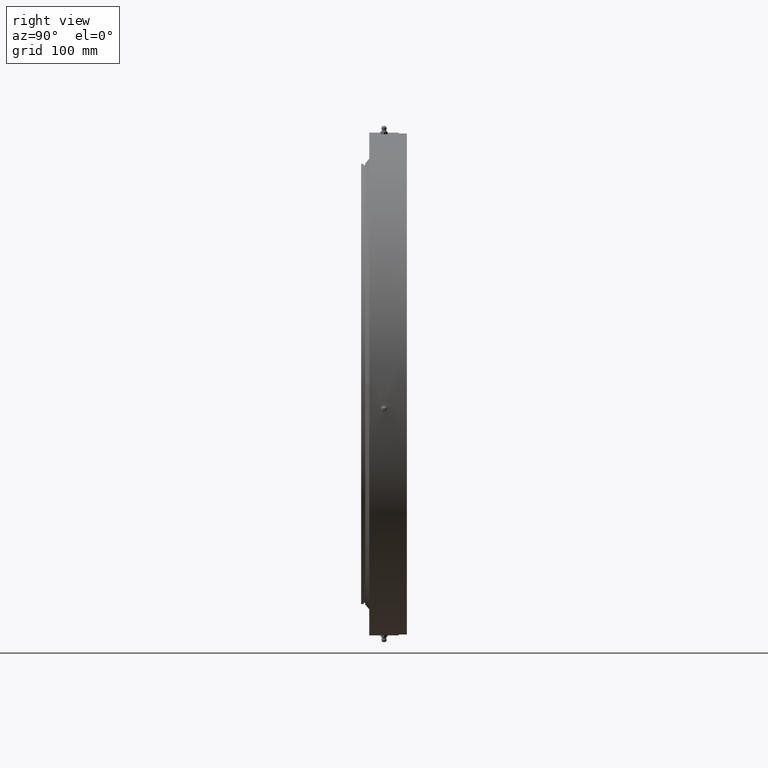
[diagram: clean part render]
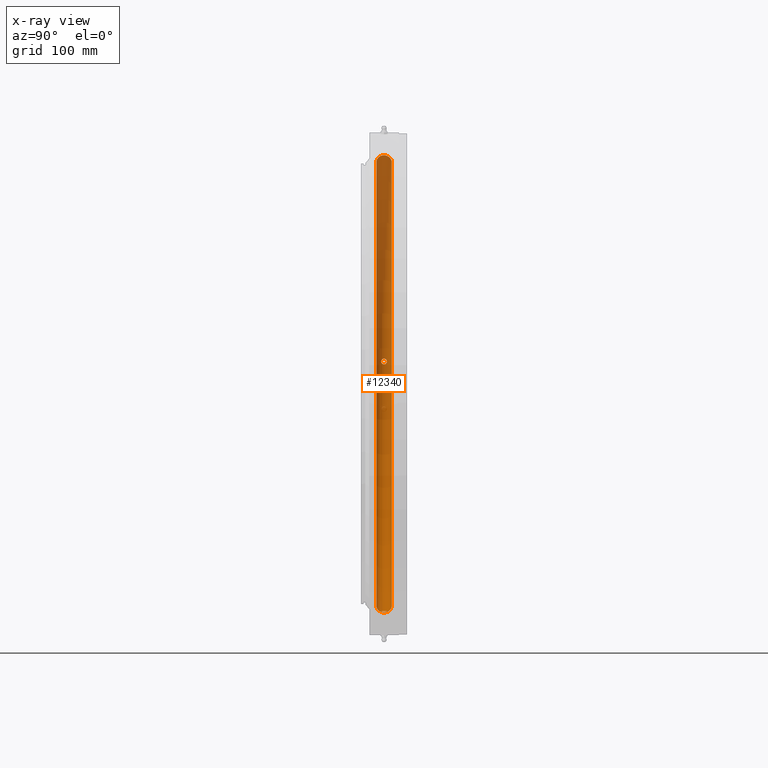
[diagram: x-ray — body ghosted, one internal face saturated and labeled with its STEP entity id]
A machine part, right view, then the same camera in x-ray: the body is ghosted and one INTERNAL B-rep face — a face not visible from any outside direction — is saturated and labeled: STEP entity #12340.
In plain terms, the highlighted toroidal blend (fillet) surface has major radius 270.5 mm and minor (blend) radius 9.75 mm.
Its self-contained STEP definition (entity closure, byte-faithful):
#193 = CARTESIAN_POINT ( 'NONE',  ( -4.854290794506961600E-014, -9.486832980505148800, -272.7499999999999400 ) ) ;
#208 = CARTESIAN_POINT ( 'NONE',  ( -30.47343172828992800, -1.756724164248161500, -278.4297639028860700 ) ) ;
#262 = CARTESIAN_POINT ( 'NONE',  ( -278.9249916018696900, -2.138429774617583800, 24.67820583414993500 ) ) ;
#304 = CARTESIAN_POINT ( 'NONE',  ( -30.21321827538027800, -2.136439966059588500, -278.3802987086440300 ) ) ;
#375 = CARTESIAN_POINT ( 'NONE',  ( -23.98401473821215300, -4.257732180322140700E-009, -279.2218285468334200 ) ) ;
#650 = CARTESIAN_POINT ( 'NONE',  ( -279.2218285468333100, -4.280068975054959700E-009, 23.98401473821312300 ) ) ;
#940 = VERTEX_POINT ( 'NONE', #16788 ) ;
#967 = CARTESIAN_POINT ( 'NONE',  ( 1.402719954538093300E-014, 9.486832980505148800, 272.7499999999999400 ) ) ;
#1100 = CARTESIAN_POINT ( 'NONE',  ( -278.6996987440509800, -2.781271624159725500, 25.30228085811661400 ) ) ;
#1233 = VERTEX_POINT ( 'NONE', #967 ) ;
#1430 = CARTESIAN_POINT ( 'NONE',  ( -30.95030782491753400, -4.281385883225100000E-009, -278.5357085645266000 ) ) ;
#1626 = CARTESIAN_POINT ( 'NONE',  ( -25.13032593813337500, -2.635966824546191100, -278.7579627105216100 ) ) ;
#1705 = CARTESIAN_POINT ( 'NONE',  ( -24.15766224252708800, 1.133029113677961100, -279.1429338301451300 ) ) ;
#1958 = CARTESIAN_POINT ( 'NONE',  ( -30.83342232907314800, 0.9138095768234136800, -278.5081299862586100 ) ) ;
#2109 = CARTESIAN_POINT ( 'NONE',  ( -278.5080952078080800, -0.9143810093683116800, 30.83327238850264300 ) ) ;
#2238 = FACE_BOUND ( 'NONE', #5672, .T. ) ;
#2389 = CARTESIAN_POINT ( 'NONE',  ( -30.95030782491753400, -4.281385883225100000E-009, -278.5357085645266000 ) ) ;
#2450 = CARTESIAN_POINT ( 'NONE',  ( -278.3542384561964100, -2.313041298998646900, 30.06497979109539300 ) ) ;
#2491 = CARTESIAN_POINT ( 'NONE',  ( -30.76397169548518900, -1.134678781540412900, -278.4920659362870800 ) ) ;
#2691 = EDGE_CURVE ( 'NONE', #14348, #11439, #7071, .T. ) ;
#2799 = CARTESIAN_POINT ( 'NONE',  ( -28.96802460990087300, -3.142631229246665400, -278.2262320770839800 ) ) ;
#2844 = AXIS2_PLACEMENT_3D ( 'NONE', #20410, #19904, #25847 ) ;
#3040 = ORIENTED_EDGE ( 'NONE', *, *, #22662, .T. ) ;
#3173 = CARTESIAN_POINT ( 'NONE',  ( -278.3850020937516700, -3.386135099661436300, 26.49882027671597500 ) ) ;
#3628 = CARTESIAN_POINT ( 'NONE',  ( -25.86709134568174000, -3.142395178954935800, -278.5317323469201900 ) ) ;
#4048 = CARTESIAN_POINT ( 'NONE',  ( -23.98401473820075600, -0.2300511060104313600, -279.2218285467335500 ) ) ;
#4092 = CARTESIAN_POINT ( 'NONE',  ( -25.66872807210609900, 3.033074913521724500, -278.5871875845675700 ) ) ;
#4126 = CARTESIAN_POINT ( 'NONE',  ( -24.43319716235530200, -1.760509877079625000, -279.0239940688954900 ) ) ;
#4150 = CARTESIAN_POINT ( 'NONE',  ( -25.30377262526328200, -2.782373637838455600, -278.6992252177875600 ) ) ;
#4239 = CARTESIAN_POINT ( 'NONE',  ( -24.15823516713578600, -1.134604883000507800, -279.1426816790382800 ) ) ;
#4364 = CARTESIAN_POINT ( 'NONE',  ( -4.814246232499115000E-014, 9.451857946318540900E-015, -270.5000000000000000 ) ) ;
#4422 = CARTESIAN_POINT ( 'NONE',  ( -29.55803021655181300, -2.779506465275010600, -278.2810691666264800 ) ) ;
#4464 = DIRECTION ( 'NONE',  ( 1.779758311459937600E-016, 0.0000000000000000000, 1.000000000000000000 ) ) ;
#4496 = DIRECTION ( 'NONE',  ( -1.000000000000000000, -1.173697223544192200E-016, 1.779758311459931500E-016 ) ) ;
#4509 = CARTESIAN_POINT ( 'NONE',  ( -278.2313160871086100, -3.500030615464213100, 27.63363335112000000 ) ) ;
#4515 = EDGE_LOOP ( 'NONE', ( #13888, #7153, #3040, #20106 ) ) ;
#4572 = CARTESIAN_POINT ( 'NONE',  ( -26.28459403957380800, -3.319584510296676800, -278.4301327297653200 ) ) ;
#4600 = CARTESIAN_POINT ( 'NONE',  ( -279.2218285468333100, -4.280068975054959700E-009, 23.98401473821312300 ) ) ;
#4658 = CARTESIAN_POINT ( 'NONE',  ( -24.67888826469068400, -2.139455578496731300, -278.9247173707600500 ) ) ;
#4934 = CARTESIAN_POINT ( 'NONE',  ( -30.06370089088044800, -2.314213452420447000, -278.3540544551126500 ) ) ;
#4960 = CARTESIAN_POINT ( 'NONE',  ( -29.73712107816338300, -2.634507935561748200, -278.3046191000360600 ) ) ;
#5220 = CARTESIAN_POINT ( 'NONE',  ( -278.3075091432600100, -3.477219868026501200, 26.94758974910257600 ) ) ;
#5250 = CARTESIAN_POINT ( 'NONE',  ( -30.58360454258735600, -1.556455931016093500, -278.4528074319814000 ) ) ;
#5305 = CARTESIAN_POINT ( 'NONE',  ( -30.95030782490758600, -0.2315976925125431100, -278.5357085644253600 ) ) ;
#5417 = CARTESIAN_POINT ( 'NONE',  ( -278.9253132731368500, 2.137540216020092500, 24.67734925807681300 ) ) ;
#5468 = CARTESIAN_POINT ( 'NONE',  ( -30.06099037216861100, 2.317260115374573100, -278.3535987454600300 ) ) ;
#5569 = EDGE_CURVE ( 'NONE', #13039, #21735, #14714, .T. ) ;
#5672 = EDGE_LOOP ( 'NONE', ( #7127, #20317 ) ) ;
#5771 = CARTESIAN_POINT ( 'NONE',  ( -24.09344138367343300, 0.9145873256553425100, -279.1719008168937500 ) ) ;
#5912 = CIRCLE ( 'NONE', #14736, 272.7499999999999400 ) ;
#6140 = CARTESIAN_POINT ( 'NONE',  ( -29.55555642089489200, 2.781309824331817300, -278.2807833271904800 ) ) ;
#6430 = CARTESIAN_POINT ( 'NONE',  ( -23.98401473822353900, 0.2299571179798947400, -279.2218285469333000 ) ) ;
#6647 = CIRCLE ( 'NONE', #7875, 9.750000000000000000 ) ;
#6689 = CARTESIAN_POINT ( 'NONE',  ( -279.0250914682695200, 1.755955647628078000, 24.43054667573691300 ) ) ;
#7017 = FACE_OUTER_BOUND ( 'NONE', #4515, .T. ) ;
#7071 = B_SPLINE_CURVE_WITH_KNOTS ( 'NONE', 3,
 ( #21748, #22955, #12822, #10984, #25725, #19838, #13283, #13334, #16161, #16002, #9927, #10564, #20526, #20721, #15921, #11950, #23185, #11869, #21326, #21302, #14678, #11882, #18723, #15341, #7399, #25456, #5417, #6689, #23246, #19755, #17088, #10015, #13907, #9468 ),
 .UNSPECIFIED., .F., .F.,
 ( 4, 2, 2, 2, 2, 2, 2, 2, 2, 2, 2, 2, 2, 2, 2, 2, 4 ),
 ( 0.01433285584180587900, 0.01502221361534239600, 0.01571157138887891600, 0.01640092916241543300, 0.01709028693595195100, 0.01777964470948846900, 0.01846900248302498600, 0.01915836025656150700, 0.01984771803009802500, 0.02053707580363454300, 0.02122643357717106000, 0.02191579135070757800, 0.02260514912424409900, 0.02329450689778061300, 0.02398386467131713400, 0.02467322244485365200, 0.02536258021839017000 ),
 .UNSPECIFIED. ) ;
#7127 = ORIENTED_EDGE ( 'NONE', *, *, #8302, .T. ) ;
#7153 = ORIENTED_EDGE ( 'NONE', *, *, #18522, .F. ) ;
#7399 = CARTESIAN_POINT ( 'NONE',  ( -278.7588914044392300, 2.633466420770469900, 25.12767845659231700 ) ) ;
#7508 = CARTESIAN_POINT ( 'NONE',  ( -26.28357912707871000, 3.319177478200374700, -278.4303729535791900 ) ) ;
#7573 = CARTESIAN_POINT ( 'NONE',  ( 1.625413345127020400E-014, -9.486832980505164800, 272.7499999999999400 ) ) ;
#7673 = CARTESIAN_POINT ( 'NONE',  ( -29.17119565696736300, -3.034976839485889600, -278.2416420624298900 ) ) ;
#7875 = AXIS2_PLACEMENT_3D ( 'NONE', #8080, #8109, #8114 ) ;
#8006 = CARTESIAN_POINT ( 'NONE',  ( -27.86277612846189900, 3.477590386137031900, -278.2172335325140000 ) ) ;
#8046 = B_SPLINE_CURVE_WITH_KNOTS ( 'NONE', 3,
 ( #20698, #4048, #20234, #20471, #4239, #13154, #4126, #4658, #15650, #1626, #4150, #17476, #3628, #4572, #9476, #21482, #21171, #20386, #20993, #20907, #23109, #2799, #7673, #4422, #4960, #4934, #304, #208, #5250, #2491, #19566, #20728, #5305, #2389 ),
 .UNSPECIFIED., .F., .F.,
 ( 4, 2, 2, 2, 2, 2, 2, 2, 2, 2, 2, 2, 2, 2, 2, 2, 4 ),
 ( 0.002769913162153709900, 0.003459460999611723000, 0.004149008837069735600, 0.004838556674527748700, 0.005528104511985761800, 0.006217652349443774900, 0.006907200186901787900, 0.007596748024359801000, 0.008286295861817814100, 0.008975843699275827200, 0.009665391536733840300, 0.01035493937419185300, 0.01104448721164986600, 0.01173403504910788000, 0.01242358288656589300, 0.01311313072402390600, 0.01380267856148191900 ),
 .UNSPECIFIED. ) ;
#8080 = CARTESIAN_POINT ( 'NONE',  ( 1.501576640805524200E-014, -9.451857946318544000E-015, 270.5000000000000000 ) ) ;
#8109 = DIRECTION ( 'NONE',  ( 1.000000000000000000, 1.173697223544192200E-016, -5.551115123125782100E-017 ) ) ;
#8114 = DIRECTION ( 'NONE',  ( -1.173697223544191900E-016, 1.000000000000000000, 0.0000000000000000000 ) ) ;
#8217 = CARTESIAN_POINT ( 'NONE',  ( -30.76385361760241500, 1.135383462246547100, -278.4920328475570300 ) ) ;
#8302 = EDGE_CURVE ( 'NONE', #21735, #13039, #8046, .T. ) ;
#8304 = AXIS2_PLACEMENT_3D ( 'NONE', #13904, #12771, #9238 ) ;
#8619 = CARTESIAN_POINT ( 'NONE',  ( -278.2055888023720600, -3.386295967064586200, 28.31983953094026100 ) ) ;
#8802 = CARTESIAN_POINT ( 'NONE',  ( -278.2418461655935300, -3.033653544982242200, 29.17320359956162400 ) ) ;
#9238 = DIRECTION ( 'NONE',  ( 5.551115123125782700E-017, -3.180061367510187900E-017, 1.000000000000000000 ) ) ;
#9384 = CARTESIAN_POINT ( 'NONE',  ( -28.96437862334548900, 3.144347589236178700, -278.2260174980917800 ) ) ;
#9468 = CARTESIAN_POINT ( 'NONE',  ( -279.2218285468333100, -4.280068975054959700E-009, 23.98401473821312300 ) ) ;
#9476 = CARTESIAN_POINT ( 'NONE',  ( -26.50187440717693500, -3.386785377388254100, -278.3844640890052300 ) ) ;
#9756 = CARTESIAN_POINT ( 'NONE',  ( -278.5307366364489800, -3.144194143302987000, 25.87103738361364700 ) ) ;
#9898 = CARTESIAN_POINT ( 'NONE',  ( -24.67732439378276200, 2.137212346283159800, -278.9253397069732600 ) ) ;
#9927 = CARTESIAN_POINT ( 'NONE',  ( -278.2805604522998800, 2.782733311475066100, 29.55350921898988000 ) ) ;
#10015 = CARTESIAN_POINT ( 'NONE',  ( -279.2117625315914300, 0.4590211284230170700, 24.00571379444599200 ) ) ;
#10174 = CARTESIAN_POINT ( 'NONE',  ( -27.17687185648829400, 3.499998538786661200, -278.2763151610379900 ) ) ;
#10388 = AXIS2_PLACEMENT_3D ( 'NONE', #4364, #4496, #4464 ) ;
#10453 = CIRCLE ( 'NONE', #10388, 9.749999999999980500 ) ;
#10564 = CARTESIAN_POINT ( 'NONE',  ( -278.2416099963026000, 3.035254999242762400, 29.17040423113116500 ) ) ;
#10615 = EDGE_LOOP ( 'NONE', ( #15639, #19002 ) ) ;
#10781 = DIRECTION ( 'NONE',  ( 5.551115123125782700E-017, -3.180061367510187900E-017, 1.000000000000000000 ) ) ;
#10786 = CARTESIAN_POINT ( 'NONE',  ( -278.4527496375205300, -1.557156581814095300, 30.58334673513966400 ) ) ;
#10901 = DIRECTION ( 'NONE',  ( 1.173697223544192200E-016, -1.000000000000000000, -3.494217355385783800E-017 ) ) ;
#10984 = CARTESIAN_POINT ( 'NONE',  ( -278.5082105765965800, 0.9130533991701739200, 30.83377543654189200 ) ) ;
#11065 = CARTESIAN_POINT ( 'NONE',  ( -30.95030782491753400, -4.281385883225100000E-009, -278.5357085645266000 ) ) ;
#11202 = CARTESIAN_POINT ( 'NONE',  ( 1.113466952944637800E-015, -9.486832980505157700, -3.314905644812736000E-016 ) ) ;
#11439 = VERTEX_POINT ( 'NONE', #650 ) ;
#11716 = CARTESIAN_POINT ( 'NONE',  ( -278.4922226485786000, -1.132915198426729800, 30.76468394630448300 ) ) ;
#11869 = CARTESIAN_POINT ( 'NONE',  ( -278.2767363979997400, 3.499930358246662100, 27.17285379212063000 ) ) ;
#11882 = CARTESIAN_POINT ( 'NONE',  ( -278.5319890327670600, 3.141853168955058200, 25.86625619645334600 ) ) ;
#11950 = CARTESIAN_POINT ( 'NONE',  ( -278.2171436681345000, 3.476941506132190400, 27.86609925564792400 ) ) ;
#12134 = CARTESIAN_POINT ( 'NONE',  ( -28.31916460012396200, 3.386549345216288900, -278.2055645837510800 ) ) ;
#12340 = ADVANCED_FACE ( 'NONE', ( #7017, #2238, #22547 ), #24431, .F. ) ;
#12580 = CARTESIAN_POINT ( 'NONE',  ( -24.32736099899434000, 1.556281382685053200, -279.0690369773716400 ) ) ;
#12717 = CARTESIAN_POINT ( 'NONE',  ( -278.2080851516481100, -3.319329713413063000, 28.53992120444867800 ) ) ;
#12771 = DIRECTION ( 'NONE',  ( 1.173697223544192200E-016, -1.000000000000000000, -3.494217355385783800E-017 ) ) ;
#12822 = CARTESIAN_POINT ( 'NONE',  ( -278.5300791449639100, 0.4591471757546548000, 30.92710748217815100 ) ) ;
#13039 = VERTEX_POINT ( 'NONE', #11065 ) ;
#13154 = CARTESIAN_POINT ( 'NONE',  ( -24.32742661487463600, -1.556297684463082300, -279.0690110778689900 ) ) ;
#13283 = CARTESIAN_POINT ( 'NONE',  ( -278.4293504415752000, 1.760184588638393300, 30.47139721196484900 ) ) ;
#13313 = CARTESIAN_POINT ( 'NONE',  ( -278.5864405469868100, -3.034661041457621600, 25.67126350052180000 ) ) ;
#13334 = CARTESIAN_POINT ( 'NONE',  ( -278.3797902247012500, 2.140051408213414800, 30.21040021023186700 ) ) ;
#13823 = CARTESIAN_POINT ( 'NONE',  ( -29.16996506694971500, 3.035618248281462900, -278.2415506726519000 ) ) ;
#13888 = ORIENTED_EDGE ( 'NONE', *, *, #23353, .F. ) ;
#13904 = CARTESIAN_POINT ( 'NONE',  ( -1.113466952944637800E-015, 9.486832980505157700, 3.314905644812736000E-016 ) ) ;
#13907 = CARTESIAN_POINT ( 'NONE',  ( -279.2218285469341500, 0.2306642535041446600, 23.98401473822314900 ) ) ;
#14227 = CARTESIAN_POINT ( 'NONE',  ( -25.13087558362817800, 2.636613565998704900, -278.7577545995731600 ) ) ;
#14348 = VERTEX_POINT ( 'NONE', #24874 ) ;
#14612 = CARTESIAN_POINT ( 'NONE',  ( -24.00635465265238700, 0.4637444747988923600, -279.2114680188634000 ) ) ;
#14676 = CARTESIAN_POINT ( 'NONE',  ( -278.2808712520850900, -2.780789660339999100, 29.55608299207005600 ) ) ;
#14678 = CARTESIAN_POINT ( 'NONE',  ( -278.4310239731495900, 3.318123462748603800, 26.28071451962900400 ) ) ;
#14714 = B_SPLINE_CURVE_WITH_KNOTS ( 'NONE', 3,
 ( #1430, #14856, #24987, #1958, #8217, #22389, #16240, #20344, #5468, #19667, #6140, #13823, #9384, #24203, #12134, #8006, #21691, #10174, #24287, #21585, #7508, #23526, #4092, #26288, #14227, #22184, #9898, #25958, #12580, #1705, #5771, #14612, #6430, #375 ),
 .UNSPECIFIED., .F., .F.,
 ( 4, 2, 2, 2, 2, 2, 2, 2, 2, 2, 2, 2, 2, 2, 2, 2, 4 ),
 ( 0.01380267856148191900, 0.01449194470773789200, 0.01518121085399386600, 0.01587047700024983900, 0.01655974314650580900, 0.01724900929276178300, 0.01793827543901775600, 0.01862754158527373000, 0.01931680773152970000, 0.02000607387778567300, 0.02069534002404164700, 0.02138460617029762000, 0.02207387231655359400, 0.02276313846280956400, 0.02345240460906553700, 0.02414167075532151100, 0.02483093690157748400 ),
 .UNSPECIFIED. ) ;
#14736 = AXIS2_PLACEMENT_3D ( 'NONE', #11202, #10901, #10781 ) ;
#14856 = CARTESIAN_POINT ( 'NONE',  ( -30.95030782492752800, 0.2315030726296447600, -278.5357085646277800 ) ) ;
#14933 = CARTESIAN_POINT ( 'NONE',  ( -278.2763480579402000, -3.499969330738514500, 27.17664872684631000 ) ) ;
#15341 = CARTESIAN_POINT ( 'NONE',  ( -278.7004651293402700, 2.779465834650909400, 25.29989286276062200 ) ) ;
#15348 = CARTESIAN_POINT ( 'NONE',  ( -278.4303576172383700, -3.319129376873349200, 26.28381666214855300 ) ) ;
#15639 = ORIENTED_EDGE ( 'NONE', *, *, #20269, .T. ) ;
#15650 = CARTESIAN_POINT ( 'NONE',  ( -24.81820306019081800, -2.314377935017650800, -278.8706633504463100 ) ) ;
#15669 = CARTESIAN_POINT ( 'NONE',  ( -278.5357085645264300, -4.298863860878562200E-009, 30.95030782491850400 ) ) ;
#15762 = VERTEX_POINT ( 'NONE', #193 ) ;
#15891 = EDGE_CURVE ( 'NONE', #17051, #15762, #5912, .T. ) ;
#15921 = CARTESIAN_POINT ( 'NONE',  ( -278.2056438134835000, 3.387115205480923000, 28.31625758564712600 ) ) ;
#16002 = CARTESIAN_POINT ( 'NONE',  ( -278.3043785193850700, 2.636030840731161500, 29.73541806459072100 ) ) ;
#16161 = CARTESIAN_POINT ( 'NONE',  ( -278.3539418509514000, 2.314978608987238000, 30.06306985920699400 ) ) ;
#16188 = CARTESIAN_POINT ( 'NONE',  ( -279.1429010895900500, -1.133618513580157300, 24.15771869214910700 ) ) ;
#16240 = CARTESIAN_POINT ( 'NONE',  ( -30.47091716876559200, 1.760841762515438700, -278.4292615482676200 ) ) ;
#16368 = CARTESIAN_POINT ( 'NONE',  ( -278.4292905314152300, -1.760541304077643000, 30.47103129989496800 ) ) ;
#16788 = CARTESIAN_POINT ( 'NONE',  ( -5.027040440202727100E-014, 9.486832980505164800, -272.7499999999999400 ) ) ;
#16955 = CARTESIAN_POINT ( 'NONE',  ( -278.3042388028449100, -2.636951823947729400, 29.73454515756945300 ) ) ;
#17051 = VERTEX_POINT ( 'NONE', #7573 ) ;
#17088 = CARTESIAN_POINT ( 'NONE',  ( -279.1723201136507000, 0.9111528160515495200, 24.09251129148389800 ) ) ;
#17260 = CIRCLE ( 'NONE', #8304, 272.7499999999999400 ) ;
#17476 = CARTESIAN_POINT ( 'NONE',  ( -25.67136646479835300, -3.034653831572764900, -278.5864246428350800 ) ) ;
#18034 = B_SPLINE_CURVE_WITH_KNOTS ( 'NONE', 3,
 ( #4600, #20202, #21955, #18362, #16188, #18166, #23749, #262, #24877, #25376, #1100, #13313, #9756, #15348, #3173, #5220, #14933, #4509, #22786, #8619, #12717, #22958, #8802, #14676, #16955, #2450, #21871, #16368, #10786, #11716, #2109, #22755, #22663, #15669 ),
 .UNSPECIFIED., .F., .F.,
 ( 4, 2, 2, 2, 2, 2, 2, 2, 2, 2, 2, 2, 2, 2, 2, 2, 4 ),
 ( 0.003307061098152339600, 0.003996173269630685400, 0.004685285441109032100, 0.005374397612587377900, 0.006063509784065724600, 0.006752621955544071300, 0.007441734127022418000, 0.008130846298500764600, 0.008819958469979110500, 0.009509070641457458000, 0.01019818281293580200, 0.01088729498441415000, 0.01157640715589249400, 0.01226551932737084100, 0.01295463149884918900, 0.01364374367032753300, 0.01433285584180588000 ),
 .UNSPECIFIED. ) ;
#18166 = CARTESIAN_POINT ( 'NONE',  ( -279.0682270015053600, -1.560514171288896100, 24.32923999334448700 ) ) ;
#18362 = CARTESIAN_POINT ( 'NONE',  ( -279.1719181990268300, -0.9143466946192822000, 24.09340335532115400 ) ) ;
#18522 = EDGE_CURVE ( 'NONE', #1233, #940, #17260, .T. ) ;
#18723 = CARTESIAN_POINT ( 'NONE',  ( -278.5867053412740100, 3.034158973699756500, 25.67029302705907100 ) ) ;
#19002 = ORIENTED_EDGE ( 'NONE', *, *, #2691, .T. ) ;
#19566 = CARTESIAN_POINT ( 'NONE',  ( -30.83430066099128200, -0.9107423295340584300, -278.5083331017826800 ) ) ;
#19667 = CARTESIAN_POINT ( 'NONE',  ( -29.73358619271452600, 2.637578978200114700, -278.3041303032958400 ) ) ;
#19755 = CARTESIAN_POINT ( 'NONE',  ( -279.1427108188035500, 1.134334191915490300, 24.15817308160902900 ) ) ;
#19838 = CARTESIAN_POINT ( 'NONE',  ( -278.4527845500708700, 1.556661869786140500, 30.58349554104589500 ) ) ;
#19904 = DIRECTION ( 'NONE',  ( 1.173697223544192200E-016, -1.000000000000000000, -3.494217355385783800E-017 ) ) ;
#20106 = ORIENTED_EDGE ( 'NONE', *, *, #15891, .T. ) ;
#20202 = CARTESIAN_POINT ( 'NONE',  ( -279.2218285467326400, -0.2305820817819493600, 23.98401473820312200 ) ) ;
#20234 = CARTESIAN_POINT ( 'NONE',  ( -24.00559564712529000, -0.4588999770974643300, -279.2118150506443600 ) ) ;
#20269 = EDGE_CURVE ( 'NONE', #11439, #14348, #18034, .T. ) ;
#20317 = ORIENTED_EDGE ( 'NONE', *, *, #5569, .T. ) ;
#20344 = CARTESIAN_POINT ( 'NONE',  ( -30.21128897228480500, 2.138799301182354700, -278.3799567324003900 ) ) ;
#20372 = CARTESIAN_POINT ( 'NONE',  ( -23.98401473821215300, -4.257732180322140700E-009, -279.2218285468334200 ) ) ;
#20386 = CARTESIAN_POINT ( 'NONE',  ( -27.63694465713505000, -3.499969891173893900, -278.2310126562642300 ) ) ;
#20410 = CARTESIAN_POINT ( 'NONE',  ( 0.0000000000000000000, -0.0000000000000000000, 0.0000000000000000000 ) ) ;
#20471 = CARTESIAN_POINT ( 'NONE',  ( -24.09318036227944800, -0.9141406457344853900, -279.1720172507091900 ) ) ;
#20526 = CARTESIAN_POINT ( 'NONE',  ( -278.2261968151319100, 3.142799733095799300, 28.96785666382537300 ) ) ;
#20698 = CARTESIAN_POINT ( 'NONE',  ( -23.98401473821215300, -4.257732180322140700E-009, -279.2218285468334200 ) ) ;
#20721 = CARTESIAN_POINT ( 'NONE',  ( -278.2080662818168000, 3.319423601679950300, 28.53981714092984500 ) ) ;
#20728 = CARTESIAN_POINT ( 'NONE',  ( -30.92687577825832400, -0.4600299972872289900, -278.5300253949133700 ) ) ;
#20907 = CARTESIAN_POINT ( 'NONE',  ( -28.31732531108944100, -3.386891002287558900, -278.2056204302842300 ) ) ;
#20993 = CARTESIAN_POINT ( 'NONE',  ( -27.86536091280036900, -3.477099991910085100, -278.2171586332726200 ) ) ;
#21171 = CARTESIAN_POINT ( 'NONE',  ( -27.17517045846939900, -3.500030058520196400, -278.2764709490299400 ) ) ;
#21302 = CARTESIAN_POINT ( 'NONE',  ( -278.3846501608519500, 3.386554934870280600, 26.50083715042857300 ) ) ;
#21326 = CARTESIAN_POINT ( 'NONE',  ( -278.3078090044282400, 3.476861223869289800, 26.94587448007617800 ) ) ;
#21482 = CARTESIAN_POINT ( 'NONE',  ( -26.94541323432752100, -3.476747655899750100, -278.3078956234655300 ) ) ;
#21585 = CARTESIAN_POINT ( 'NONE',  ( -26.49898165938790800, 3.386091250456812100, -278.3850009919319200 ) ) ;
#21691 = CARTESIAN_POINT ( 'NONE',  ( -27.63429578283572900, 3.500001452529218700, -278.2312617471774300 ) ) ;
#21735 = VERTEX_POINT ( 'NONE', #20372 ) ;
#21748 = CARTESIAN_POINT ( 'NONE',  ( -278.5357085645264300, -4.298863860878562200E-009, 30.95030782491850400 ) ) ;
#21871 = CARTESIAN_POINT ( 'NONE',  ( -278.3801793601983300, -2.137170567938066600, 30.21249958964630300 ) ) ;
#21955 = CARTESIAN_POINT ( 'NONE',  ( -279.2114280525181600, -0.4642424174548229200, 24.00644238582320600 ) ) ;
#22184 = CARTESIAN_POINT ( 'NONE',  ( -24.81647294114742800, 2.312514598711175000, -278.8712977451001500 ) ) ;
#22389 = CARTESIAN_POINT ( 'NONE',  ( -30.58172472355873200, 1.560418457634828100, -278.4524057446257600 ) ) ;
#22547 = FACE_BOUND ( 'NONE', #10615, .T. ) ;
#22662 = EDGE_CURVE ( 'NONE', #1233, #17051, #6647, .T. ) ;
#22663 = CARTESIAN_POINT ( 'NONE',  ( -278.5357085644255300, -0.2303605225670199400, 30.95030782490741600 ) ) ;
#22755 = CARTESIAN_POINT ( 'NONE',  ( -278.5298796948216600, -0.4643386263051455000, 30.92626677818757800 ) ) ;
#22786 = CARTESIAN_POINT ( 'NONE',  ( -278.2171207289412100, -3.477149319377380400, 27.86557799431549000 ) ) ;
#22955 = CARTESIAN_POINT ( 'NONE',  ( -278.5357085646273800, 0.2304426152871200400, 30.95030782492961700 ) ) ;
#22958 = CARTESIAN_POINT ( 'NONE',  ( -278.2261206529073000, -3.143451995815834500, 28.96639905595573300 ) ) ;
#23109 = CARTESIAN_POINT ( 'NONE',  ( -28.54228419004266500, -3.318504220391973000, -278.2081427984950300 ) ) ;
#23185 = CARTESIAN_POINT ( 'NONE',  ( -278.2310410239146600, 3.500069321531590600, 27.63627918010845600 ) ) ;
#23246 = CARTESIAN_POINT ( 'NONE',  ( -279.0692013187456300, 1.555312320908613300, 24.32698489226412900 ) ) ;
#23353 = EDGE_CURVE ( 'NONE', #940, #15762, #10453, .T. ) ;
#23526 = CARTESIAN_POINT ( 'NONE',  ( -25.86750855643702700, 3.142548493307750300, -278.5316375901412600 ) ) ;
#23749 = CARTESIAN_POINT ( 'NONE',  ( -279.0238189882942400, -1.761157195896691400, 24.43363421786411700 ) ) ;
#24203 = CARTESIAN_POINT ( 'NONE',  ( -28.54026890695233800, 3.319123683634242400, -278.2081176436343000 ) ) ;
#24287 = CARTESIAN_POINT ( 'NONE',  ( -26.94523808206136200, 3.476818772611269400, -278.3078885981758500 ) ) ;
#24431 = TOROIDAL_SURFACE ( 'NONE', #2844, 270.5000000000000000, 9.750000000000000000 ) ;
#24874 = CARTESIAN_POINT ( 'NONE',  ( -278.5357085645264300, -4.298863860878562200E-009, 30.95030782491850400 ) ) ;
#24877 = CARTESIAN_POINT ( 'NONE',  ( -278.8699168439224000, -2.316682997827649100, 24.82018191613139600 ) ) ;
#24987 = CARTESIAN_POINT ( 'NONE',  ( -30.92630493579811800, 0.4639994366668897000, -278.5298889813680600 ) ) ;
#25376 = CARTESIAN_POINT ( 'NONE',  ( -278.7572800144477000, -2.637737726596789400, 25.13230637003938000 ) ) ;
#25456 = CARTESIAN_POINT ( 'NONE',  ( -278.8709596851629200, 2.313381097325688100, 24.81745868438732600 ) ) ;
#25725 = CARTESIAN_POINT ( 'NONE',  ( -278.4920390906728500, 1.135007052617693200, 30.76385221600132900 ) ) ;
#25847 = DIRECTION ( 'NONE',  ( 5.551115123125782700E-017, -3.494217355385783100E-017, 1.000000000000000000 ) ) ;
#25958 = CARTESIAN_POINT ( 'NONE',  ( -24.43320669022719100, 1.760354647049877000, -279.0239998627467900 ) ) ;
#26288 = CARTESIAN_POINT ( 'NONE',  ( -25.30162126764663100, 2.780662282097234900, -278.6999326869179800 ) ) ;